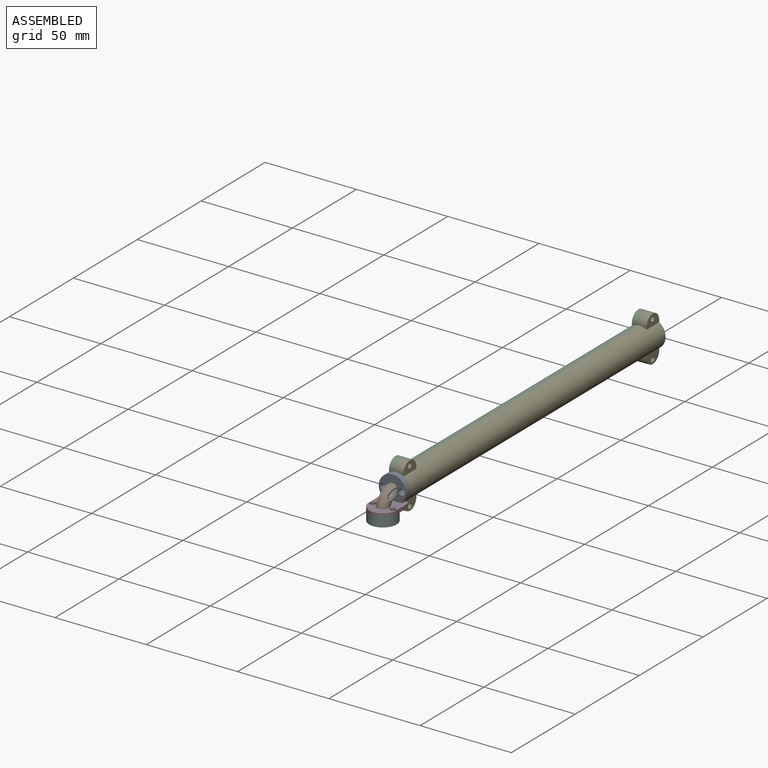
[diagram: assembled view]
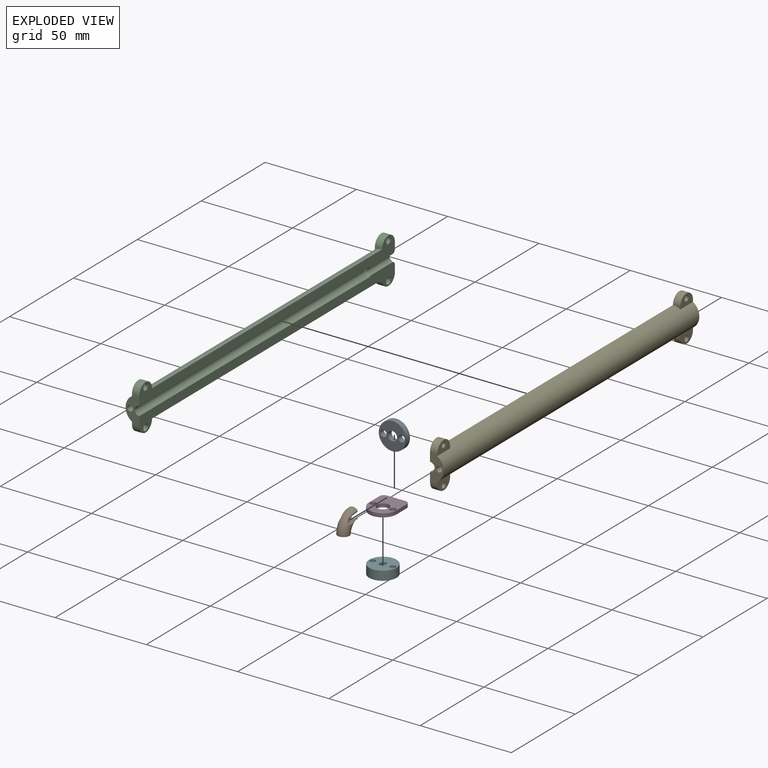
[diagram: exploded view]
GUIDED TOUR — MATED ASSEMBLY (Onshape document 56375e79a1362623dd4d4b76, AutoMate assembly 56375e79a1362623dd4d4b76_6df6844ef19d777c334c319d_5c9390573b41a7ba6c1d5c1b_default)

This assembly has 6 components, labeled P0..P5 below (a component is one placed occurrence of a part; the same part can appear more than once), held together by 5 mates. A mate is a constraint between two components; its type names the relative motion it leaves free:
  CYLINDRICAL — leaves both rotation about and translation along the listed axis free,
  FASTENED — locks the two components together rigidly (no relative motion).
Axis/direction vectors are unit vectors and 'through' points are millimeter coordinates, both in the assembly's world frame.

MATES
  1. CYLINDRICAL "Cylindrical 4": P5 <-> P3, axis (0.000, 0.000, 1.000) through (-57.58, -33.35, -3.17) mm
  2. CYLINDRICAL "Cylindrical 1": P0 <-> P4, axis (0.000, 1.000, 0.000) through (-47.08, -22.85, 4.33) mm
  3. CYLINDRICAL "Cylindrical 3": P3 <-> P1, axis (0.000, 0.000, -1.000) through (-52.08, -33.35, -3.17) mm
  4. FASTENED "Fastened 1": P2 <-> P4, direction (1.000, 0.000, 0.000) through (-52.08, 77.89, -0.92) mm
  5. CYLINDRICAL "Cylindrical 2": P1 <-> P0, axis (0.000, 1.000, 0.000) through (-52.08, -25.85, 4.33) mm

ASSEMBLY ORDER
  1. P3 — the base component [order verified]
  2. P1 [order verified]
  3. P0 [order verified]
  4. P4 [order verified]
  5. P2 [order verified]
  6. P5 [order verified]
(P1 verified with a relaxed clearance tolerance: the source model stores slight part interference there.)
Order-tag legend:
  [order verified] — this step's position reverses a verified removal order: the component was checked to insert without passing through the ones already placed.

Of the 6 components, 1 carries the full construction recipe — the FeatureScript program that regenerates the part's solid from scratch; the rest are supplied as boundary geometry only.
Each toured component is shown spotlighted twice — in the assembled view, then in the exploded view, where a leader line traces a displaced component back to its assembled socket (saturated green if recipe-attached, orange if geometry-only; every other component desaturated gray) — followed by its recipe or geometry summary and the mates that hold it.
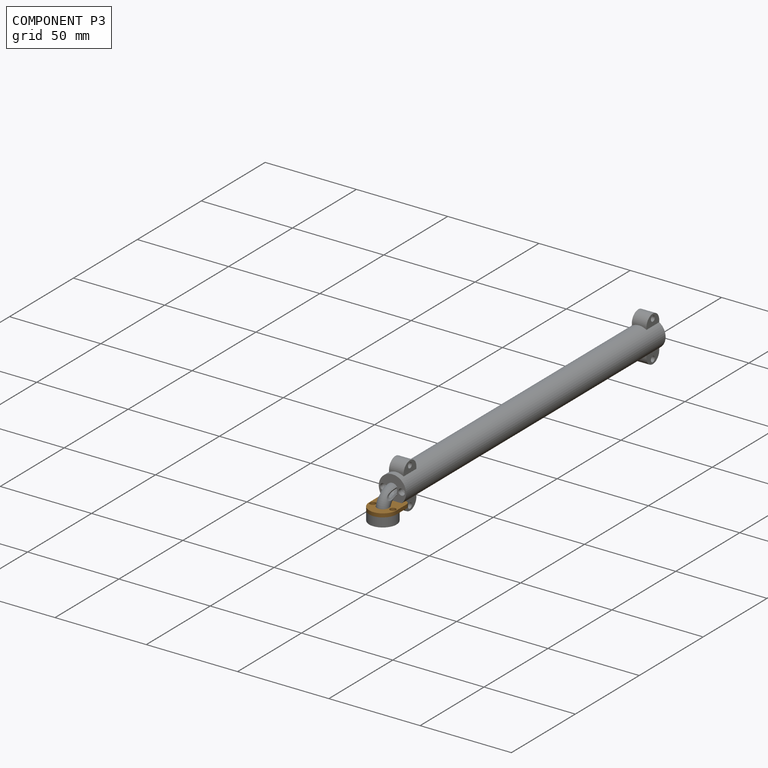
[diagram: component P3 — assembled]
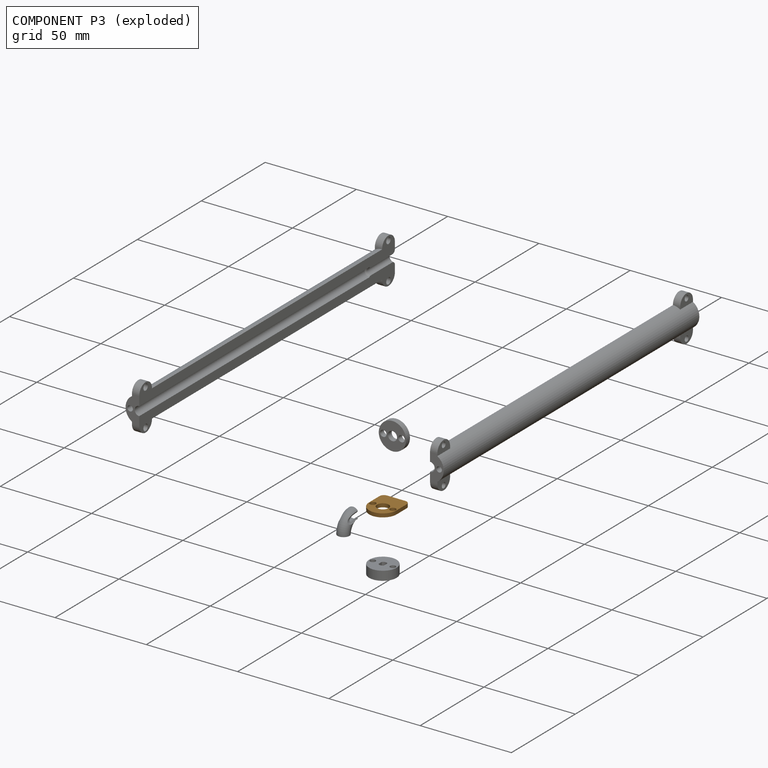
[diagram: component P3 — exploded]
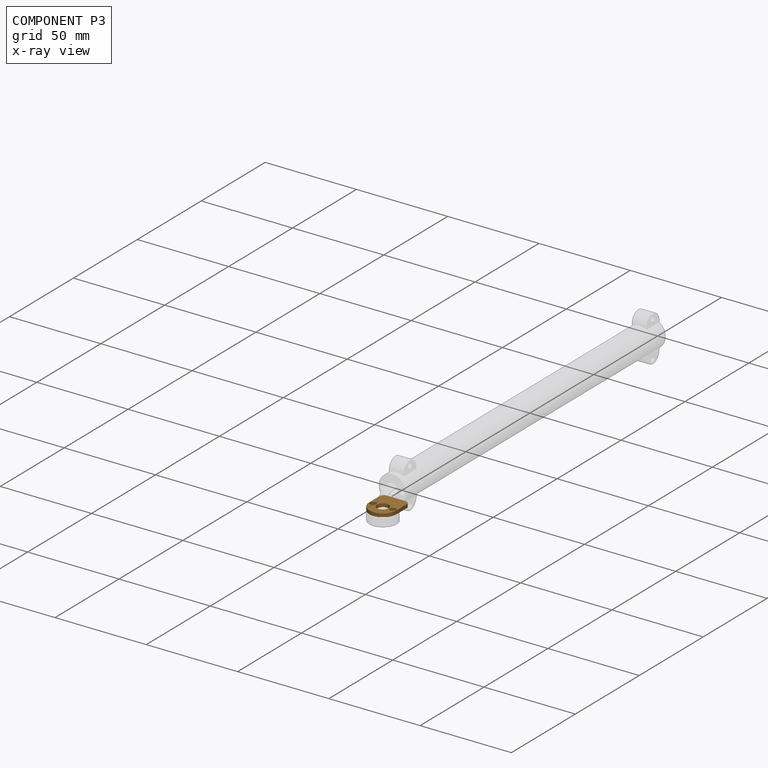
[diagram: component P3 — x-ray view]
COMPONENT P3 — geometry summary (no construction recipe available for this part):
  bounding box: 18.0 x 15.0 x 2.0 mm
  B-rep topology: 1 solid, 11 faces, 58 edges
  volume: 387 mm^3 (72% of its bounding box)
  symmetry: 2-fold rotationally symmetric about the y axis; mirror-symmetric across its x mid-plane, z mid-plane
Held by: CYLINDRICAL mate "Cylindrical 4" to P5; CYLINDRICAL mate "Cylindrical 3" to P1.
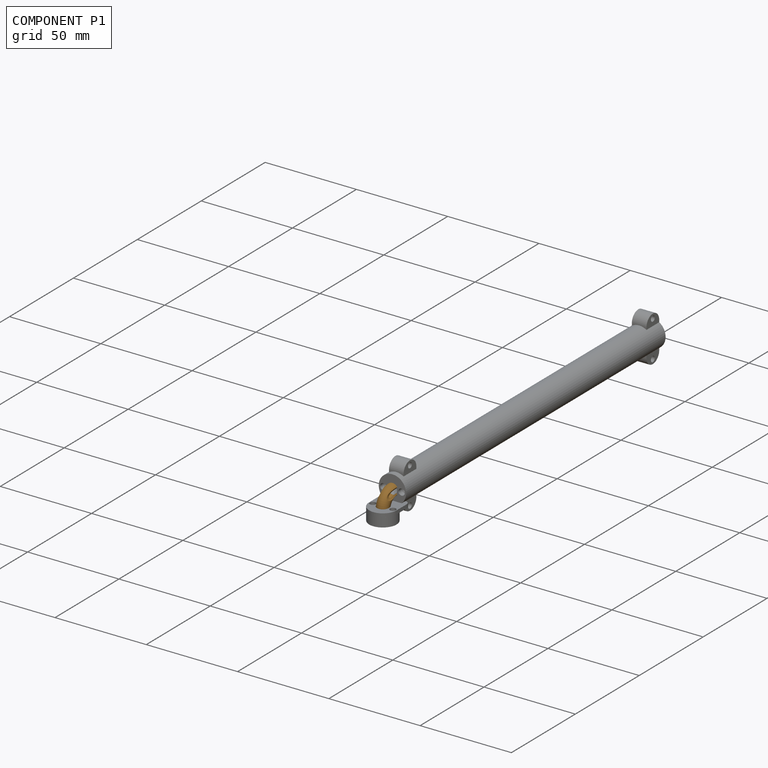
[diagram: component P1 — assembled]
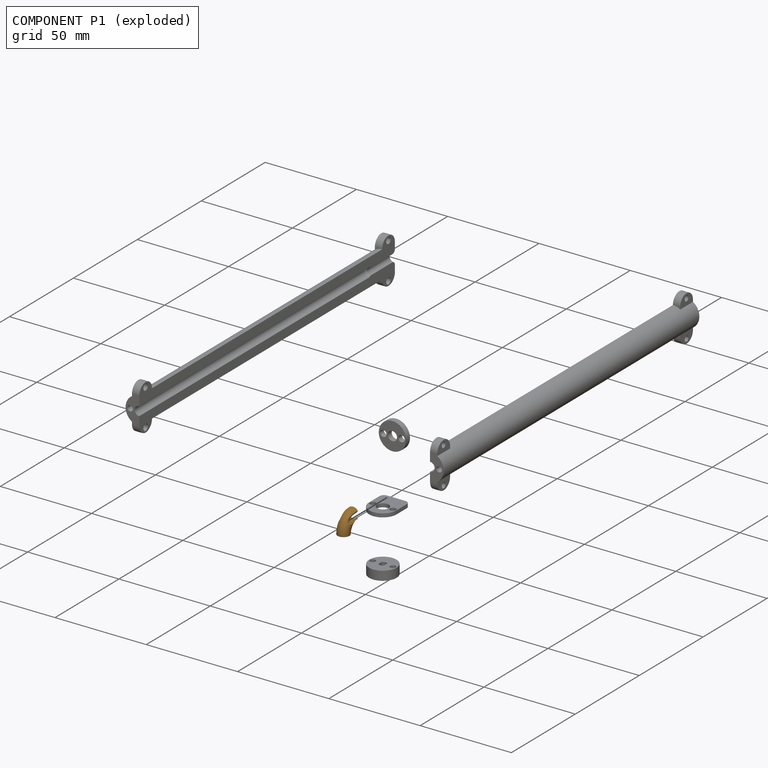
[diagram: component P1 — exploded]
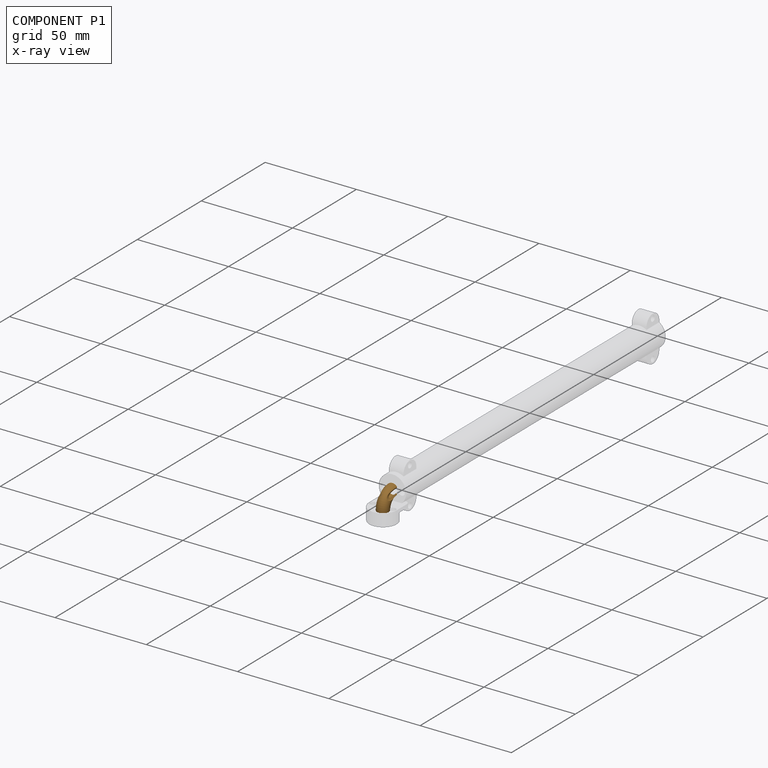
[diagram: component P1 — x-ray view]
COMPONENT P1 — geometry summary (no construction recipe available for this part):
  bounding box: 11.6 x 11.6 x 6.5 mm
  B-rep topology: 1 solid, 7 faces, 40 edges
  volume: 129 mm^3 (15% of its bounding box)
  symmetry: mirror-symmetric across its x mid-plane
Held by: CYLINDRICAL mate "Cylindrical 3" to P3; CYLINDRICAL mate "Cylindrical 2" to P0.
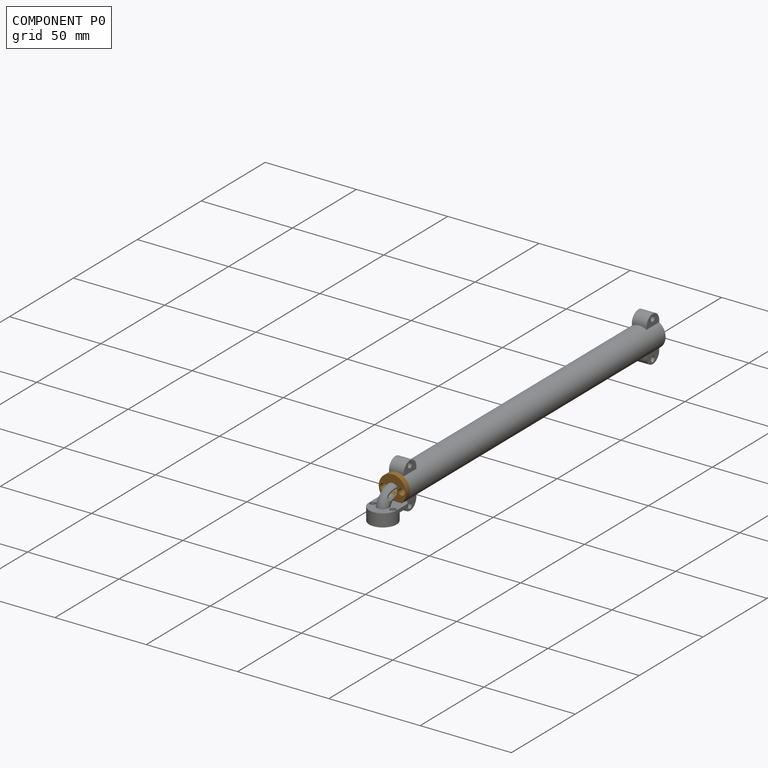
[diagram: component P0 — assembled]
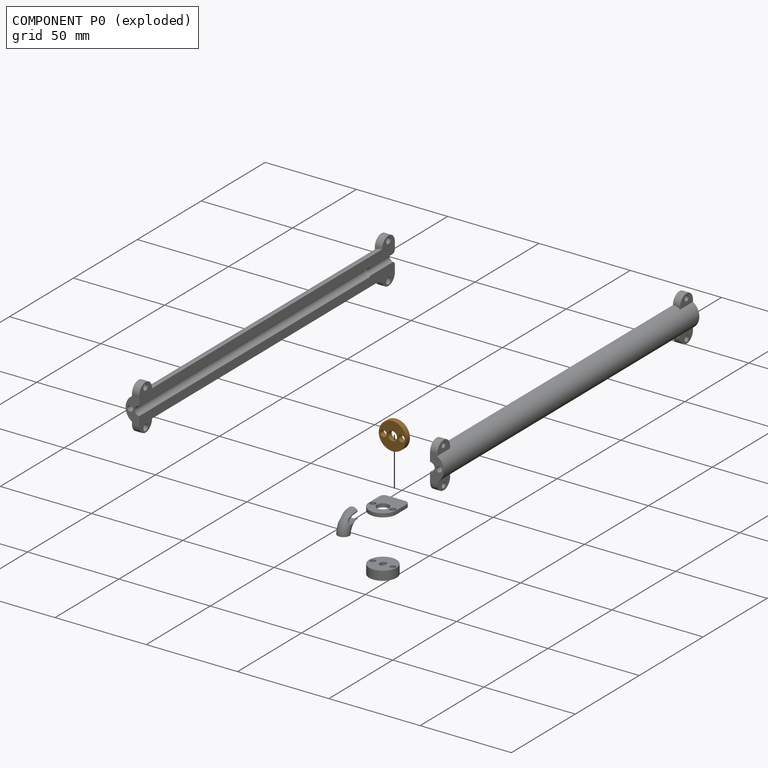
[diagram: component P0 — exploded]
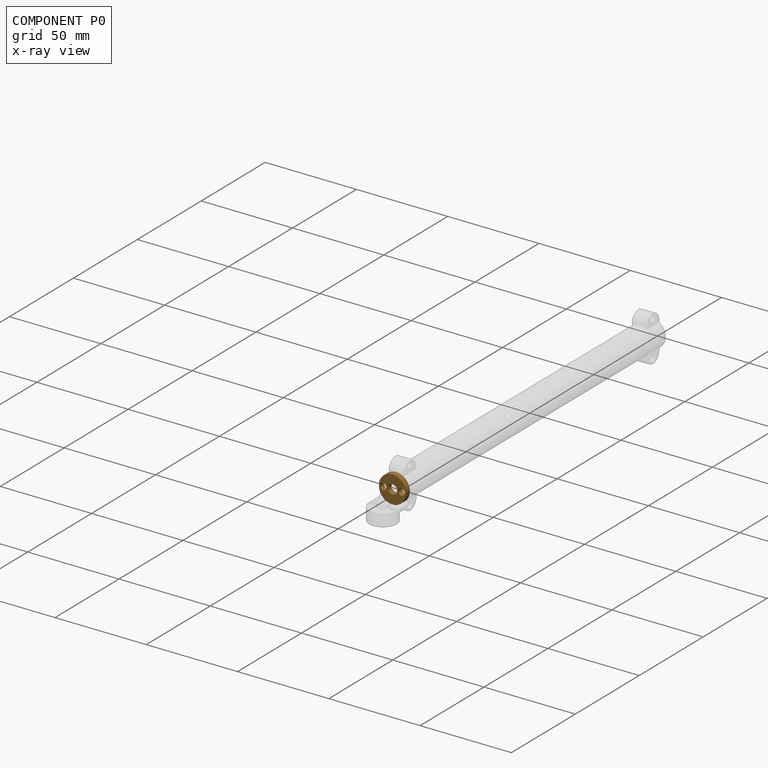
[diagram: component P0 — x-ray view]
COMPONENT P0 — geometry summary (no construction recipe available for this part):
  bounding box: 15.0 x 15.0 x 3.0 mm
  B-rep topology: 1 solid, 6 faces, 28 edges
  volume: 414 mm^3 (61% of its bounding box)
  symmetry: 2-fold rotationally symmetric about the x axis; 2-fold rotationally symmetric about the y axis; 2-fold rotationally symmetric about the z axis; mirror-symmetric across its x mid-plane, y mid-plane, z mid-plane
Held by: CYLINDRICAL mate "Cylindrical 1" to P4; CYLINDRICAL mate "Cylindrical 2" to P1.
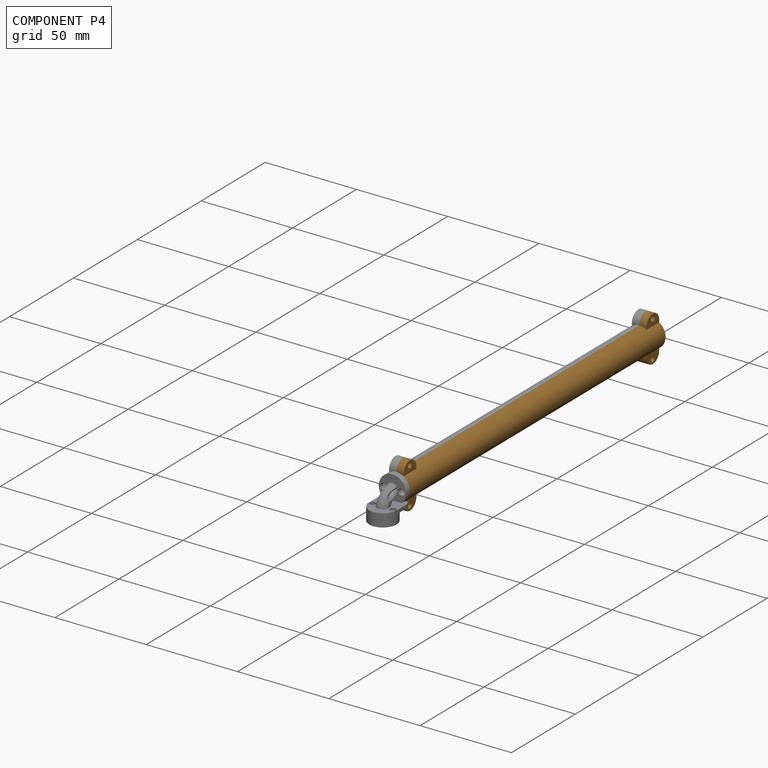
[diagram: component P4 — assembled]
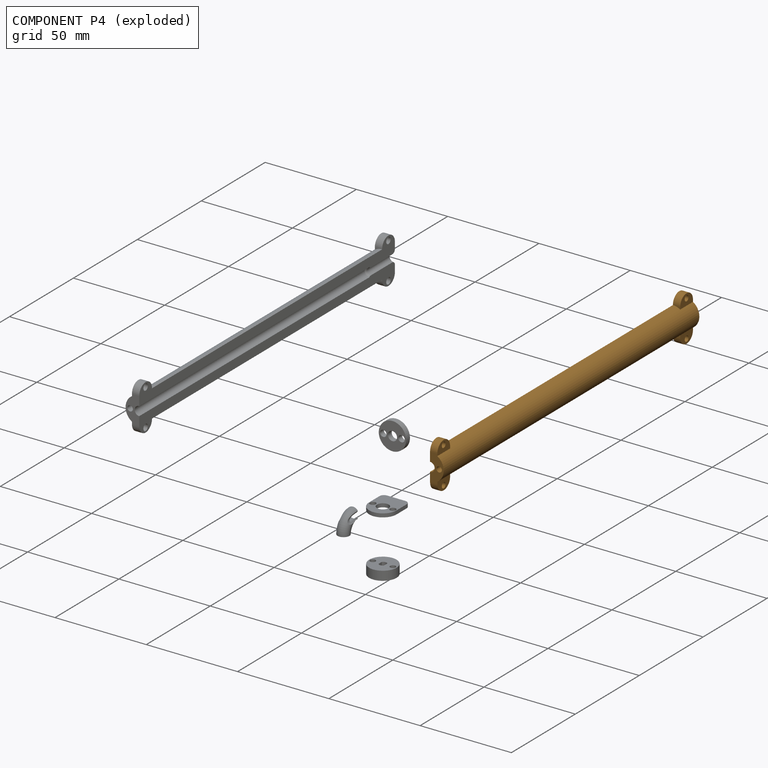
[diagram: component P4 — exploded]
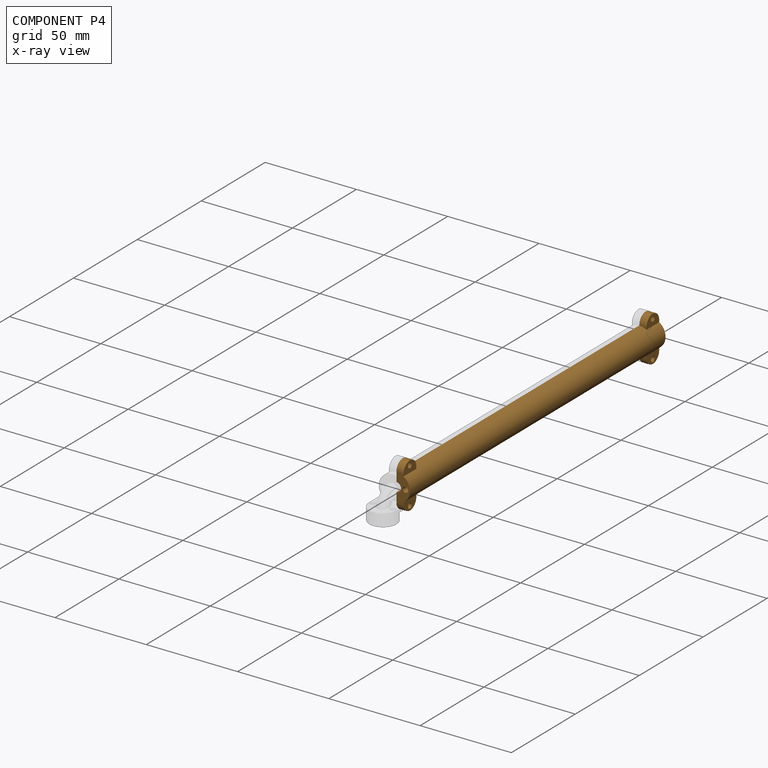
[diagram: component P4 — x-ray view]
COMPONENT P4 — geometry summary (no construction recipe available for this part):
  bounding box: 200.0 x 25.0 x 7.5 mm
  B-rep topology: 1 solid, 27 faces, 144 edges
  volume: 16169 mm^3 (43% of its bounding box)
  symmetry: mirror-symmetric across its z mid-plane
Held by: CYLINDRICAL mate "Cylindrical 1" to P0; FASTENED mate "Fastened 1" to P2.
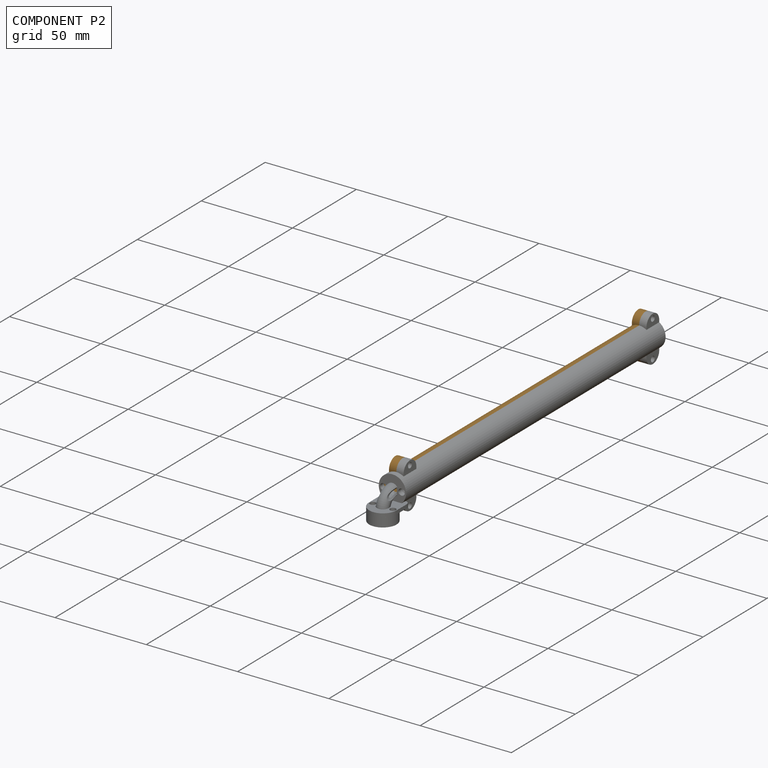
[diagram: component P2 — assembled]
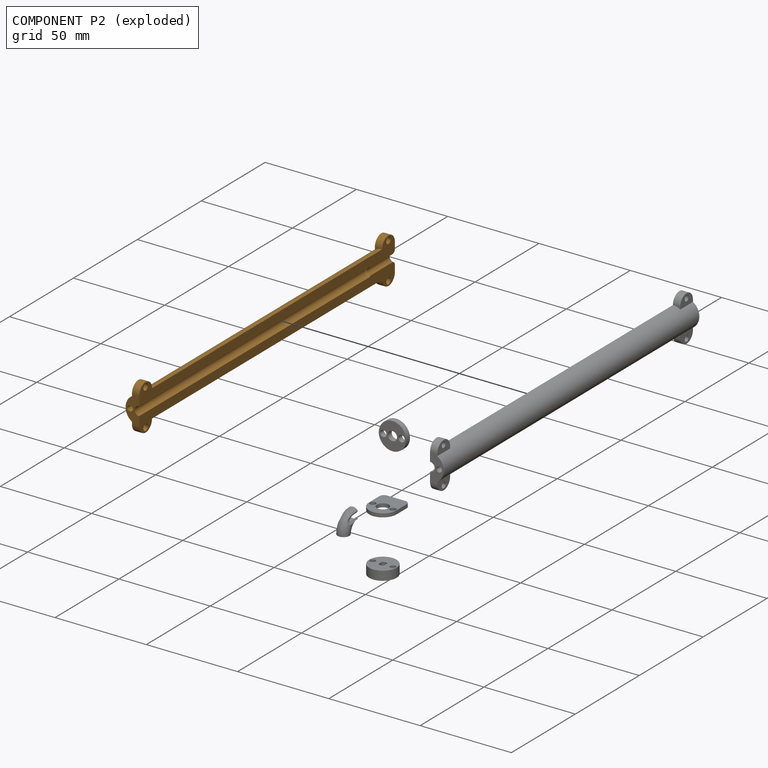
[diagram: component P2 — exploded]
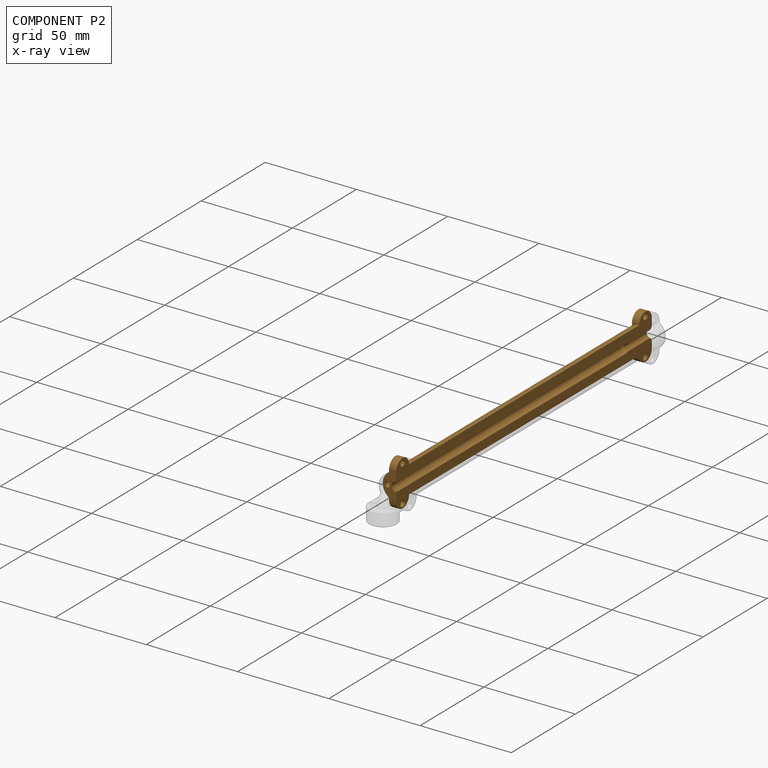
[diagram: component P2 — x-ray view]
COMPONENT P2 — geometry summary (no construction recipe available for this part):
  bounding box: 200.0 x 25.0 x 7.5 mm
  B-rep topology: 1 solid, 27 faces, 144 edges
  volume: 16128 mm^3 (43% of its bounding box)
  symmetry: mirror-symmetric across its z mid-plane
Held by: FASTENED mate "Fastened 1" to P4.
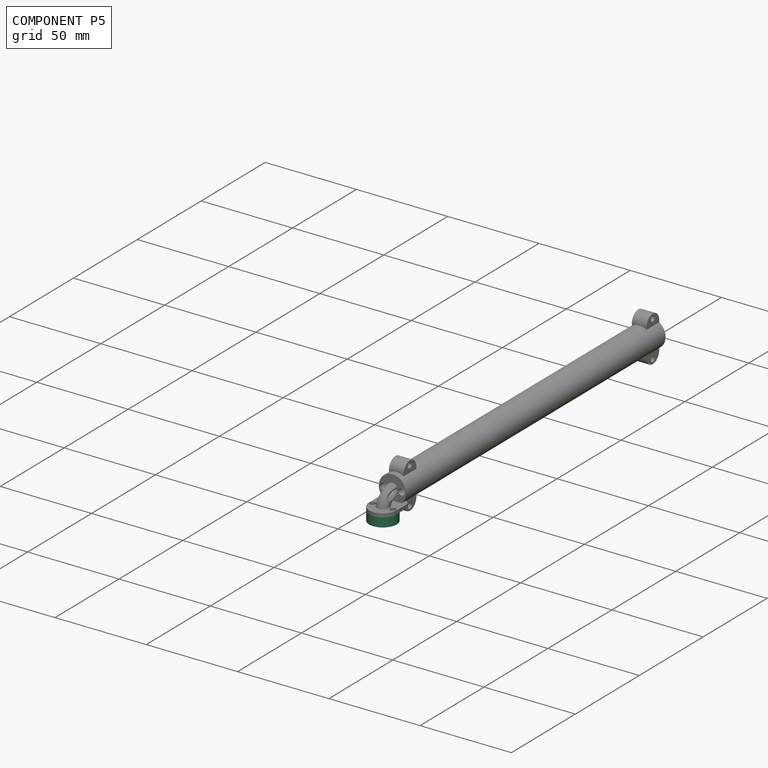
[diagram: component P5 — assembled]
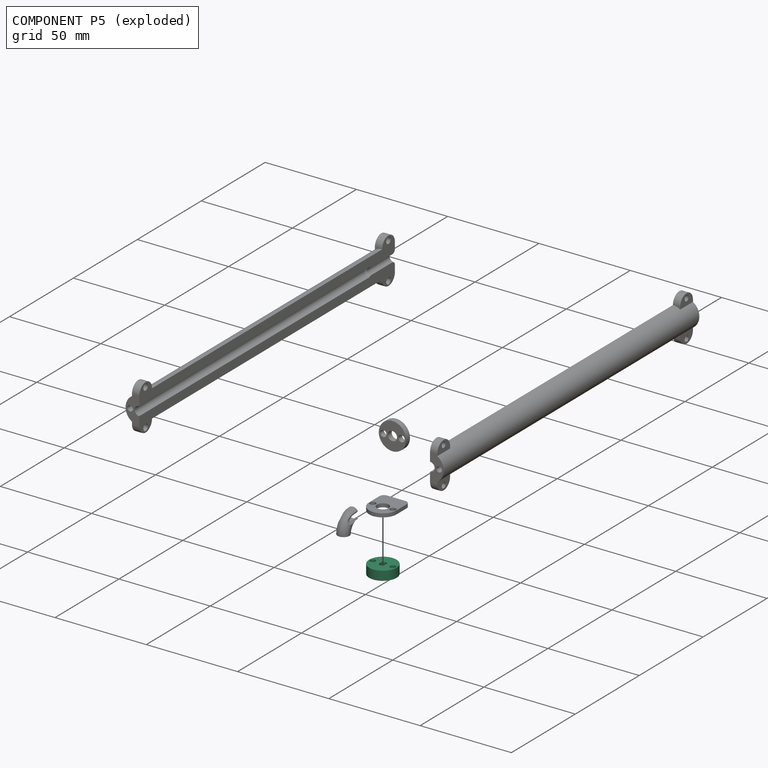
[diagram: component P5 — exploded]
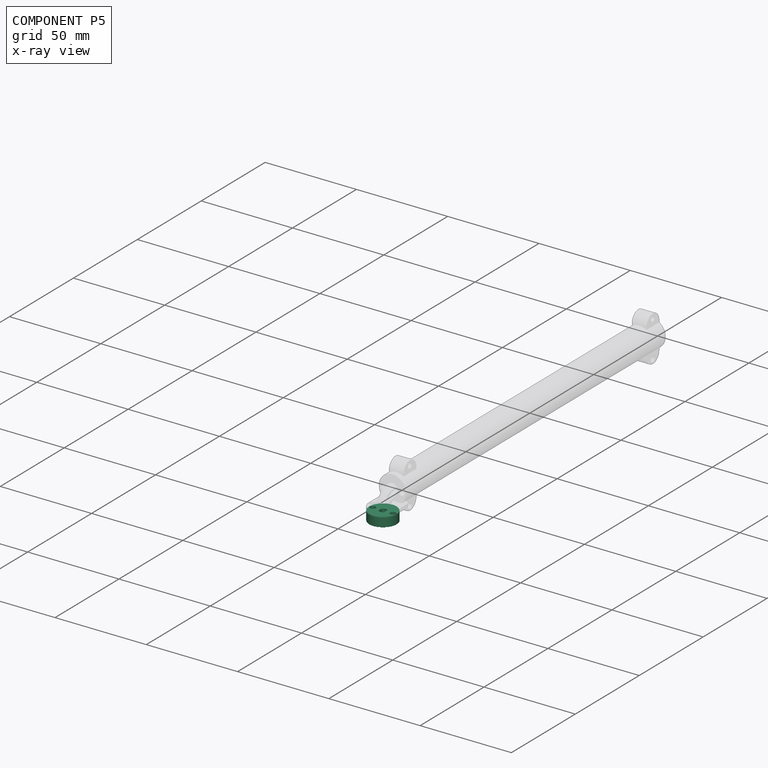
[diagram: component P5 — x-ray view]
COMPONENT P5 — recipe-attached (CADFS 00201242, mesh-verified: the recipe's output STEP matches this component's geometry to below the mesh-comparison resolution (tessellation chordal tolerance ~0.0327 mm)).
Held by: CYLINDRICAL mate "Cylindrical 4" to P3.
Construction recipe (FeatureScript — the CAD program that rebuilds this solid; sketch coordinates are in the units given by the * unit suffixes, e.g. mm):

FeatureScript 1511;
import(path : "onshape/std/geometry.fs", version : "1511.0");
import(path : "onshape/std/common.fs", version : "1511.0");
const mm = millimeter;
const VERTEX = EntityType.VERTEX;
const EDGE = EntityType.EDGE;
const FACE = EntityType.FACE;
const BODY = EntityType.BODY;
function v(x, y){return vector(x, y);}
function OD(order){return orderDisambiguation(order);}
function OSD(set){return originalSetDisambiguation(set);}
function TD(topology){return topologyDisambiguation(topology);}
function TDD(query){return trueDependencyDisambiguation(query);}
function sQuery(a, b, c) {return sketchEntityQuery(a, b, c);}

annotation { "Feature Type Name" : "Feature", "Feature Type Description" : "" }
export const myFeature = defineFeature(function(context is Context, id is Id, definition is map)
    precondition{}
    {
        {
            var Q0;
            Q0=qCreatedBy(makeId("Top.planeOp"),FACE);
            var sketch = newSketch(context, id + "F0", { "sketchPlane" : qUnion([Q0])});
            skCircle(sketch, "E0", {"center": v(0, 0) * mm, "radius": 2 * mm});
            skCircle(sketch, "E1", {"center": v(0, 0) * mm, "radius": 7.5 * mm});
            skPoint(sketch, "E2", {"position": v(0, -5.5) * mm});
            skPoint(sketch, "E3", {"position": v(0, 5.5) * mm});
            skCircle(sketch, "E4", {"center": v(0, 5.5) * mm, "radius": 1.63 * mm});
            skCircle(sketch, "E5", {"center": v(0, -5.5) * mm, "radius": 1.63 * mm});
            skLineSegment(sketch, "E6.bottom", {"start": v(-1.5, 2.5) * mm, "end": v(1.5, 2.5) * mm});
            skLineSegment(sketch, "E6.top", {"start": v(-1.5, -2.5) * mm, "end": v(1.5, -2.5) * mm});
            skLineSegment(sketch, "E6.left", {"start": v(-1.5, 2.5) * mm, "end": v(-1.5, -2.5) * mm});
            skLineSegment(sketch, "E6.right", {"start": v(1.5, 2.5) * mm, "end": v(1.5, -2.5) * mm});
            skPoint(sketch, "E7", {"position": v(-5.5, 0) * mm});
            skPoint(sketch, "E7.positionSnap0", {"position": v(-1.5, 0) * mm});
            skPoint(sketch, "E8", {"position": v(5.5, 0) * mm});
            skPoint(sketch, "E8.positionSnap0", {"position": v(1.5, 0) * mm});
            skCircle(sketch, "E9", {"center": v(-5.5, 0) * mm, "radius": 1.5 * mm});
            skCircle(sketch, "E10", {"center": v(5.5, 0) * mm, "radius": 1.5 * mm});
            skSolve(sketch);
        }
        {
            var Q0;
            Q0 = qSketchRegion(id + "F0", true);
            var Q1;
            {var subQ5=sQuery(id+"F0.wireOp",EDGE,"E6.bottom");Q1=makeQuery(id+"F0.imprint","IMPRINT",FACE,{"disambiguationData":[TD([[makeQuery(id+"F0.imprint","IMPRINT",EDGE,{"derivedFrom":subQ5}),-1.0]])]});}
            var Q2;
            {var subQ5=sQuery(id+"F0.wireOp",EDGE,"E6.top");Q2=makeQuery(id+"F0.imprint","IMPRINT",FACE,{"disambiguationData":[TD([[makeQuery(id+"F0.imprint","IMPRINT",EDGE,{"derivedFrom":subQ5}),1.0]])]});}
            var Q3;
            {var subQ0=sQuery(id+"F0.wireOp",EDGE,"E6.left");var subQ1=sQuery(id+"F0.wireOp",EDGE,"E0");var subQ2=makeQuery(id+"F0.imprint","INTERSECT",VERTEX,{"disambiguationData":[OD(0.0)],"derivedFrom":[subQ1,subQ0]});Q3=makeQuery(id+"F0.imprint","IMPRINT",FACE,{"disambiguationData":[TD([[makeQuery(id+"F0.imprint","IMPRINT",EDGE,{"disambiguationData":[TD([[subQ2,-1.0]])],"derivedFrom":subQ1}),1.0]])]});}
            var Q4;
            {var subQ0=sQuery(id+"F0.wireOp",EDGE,"E6.right");var subQ1=sQuery(id+"F0.wireOp",EDGE,"E0");var subQ2=makeQuery(id+"F0.imprint","INTERSECT",VERTEX,{"disambiguationData":[OD(0.0)],"derivedFrom":[subQ1,subQ0]});Q4=makeQuery(id+"F0.imprint","IMPRINT",FACE,{"disambiguationData":[TD([[makeQuery(id+"F0.imprint","IMPRINT",EDGE,{"disambiguationData":[TD([[subQ2,1.0]])],"derivedFrom":subQ1}),1.0]])]});}
            var Q5;
            Q5=makeQuery(id+"F0.imprint","IMPRINT",FACE,{"disambiguationData":[TD([[makeQuery(id+"F0.imprint","IMPRINT",EDGE,{"derivedFrom":sQuery(id+"F0.wireOp",EDGE,"E4")}),1.0]])]});
            var Q6;
            Q6=makeQuery(id+"F0.imprint","IMPRINT",FACE,{"disambiguationData":[TD([[makeQuery(id+"F0.imprint","IMPRINT",EDGE,{"derivedFrom":sQuery(id+"F0.wireOp",EDGE,"E5")}),1.0]])]});
            extrude(context, id + "F1", {"entities" : qUnion([Q0, Q1, Q2, Q3, Q4, Q5, Q6]), "depth" : 5 * mm});
        }
        {
            var Q0;
            Q0=makeQuery(id+"F1.opExtrude","CAP_FACE",FACE,{"disambiguationData":[OSD([sQuery(id+"F0.wireOp",EDGE,"E0"),sQuery(id+"F0.wireOp",EDGE,"E1"),sQuery(id+"F0.wireOp",EDGE,"E4"),sQuery(id+"F0.wireOp",EDGE,"E5"),sQuery(id+"F0.wireOp",EDGE,"E6.left"),sQuery(id+"F0.wireOp",EDGE,"E6.right")])],"isStart":true});
            var sketch = newSketch(context, id + "F2", { "sketchPlane" : qUnion([Q0])});
            skCircle(sketch, "E11", {"center": v(0, 0) * mm, "radius": 3 * mm});
            skLineSegment(sketch, "E12.bottom", {"start": v(2.5, 3) * mm, "end": v(-2.5, 3) * mm});
            skLineSegment(sketch, "E12.top", {"start": v(2.5, -3) * mm, "end": v(-2.5, -3) * mm});
            skLineSegment(sketch, "E12.left", {"start": v(2.5, 3) * mm, "end": v(2.5, -3) * mm});
            skLineSegment(sketch, "E12.right", {"start": v(-2.5, 3) * mm, "end": v(-2.5, -3) * mm});
            skSolve(sketch);
        }
        {
            var Q0;
            {var subQ0=sQuery(id+"F0.wireOp",EDGE,"E6.left");Q0=makeQuery(id+"F2.imprint","IMPRINT",FACE,{"disambiguationData":[TD([[makeQuery(id+"F2.imprint","IMPRINT",EDGE,{"derivedFrom":makeQuery(id+"F1.opExtrude","CAP_EDGE",EDGE,{"disambiguationData":[OSD([subQ0])],"isStart":true})}),-1.0]])]});}
            var Q1;
            {var subQ4=sQuery(id+"F0.wireOp",EDGE,"E6.left");Q1=makeQuery(id+"F2.imprint","IMPRINT",FACE,{"disambiguationData":[TD([[makeQuery(id+"F2.imprint","IMPRINT",EDGE,{"derivedFrom":makeQuery(id+"F1.opExtrude","CAP_EDGE",EDGE,{"disambiguationData":[OSD([subQ4])],"isStart":true})}),1.0]])]});}
            extrude(context, id + "F3", {"entities" : qUnion([Q0, Q1]), "operationType" : NewBodyOperationType.REMOVE, "oppositeDirection" : true, "depth" : 2 * mm});
        }
    });
PROVENANCE & LICENSES
Assembly (occurrences, transforms, mates, per-part STEP geometry): AutoMate dataset, Zenodo record 7776208, CC0.
Construction recipes: CADFS (HuggingFace VladPyatov/CADFS, CC-BY-4.0, layered over the ABC dataset), FeatureScript reconstruction programs keyed by ABC model id.
Join: ABC meta listings map ABC model id -> Onshape documentId; within a shared document, parts are matched by geometric signature (bounding-box dims + volume at 0.1% relative tolerance, exact B-rep face/solid counts).
Verification: 1 of this assembly's 6 components carries a recipe attachment, and every attachment is mesh-verified: the CADFS STEP and the AutoMate member STEP were compared as meshes in their shared local frame (symmetric sampled-point-to-mesh distance); worst across the 1 attachment: below the mesh-comparison resolution (tessellation chordal tolerance ~0.0327 mm) on a 22 mm part.
Renders: orthographic iso camera (az 35 / el 25); the floor grid conveys scale (grid pitch printed in each image; no ruler). In the exploded view each component is displaced by its stored offset vector: the offsets alone carry the explosion direction (mate normal/axis signs are not orientation cues and do not encode it), and separation distances are assigned per mate-chain, not proportionally to assembly-order depth.
